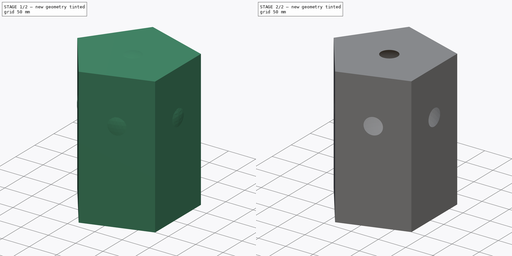
[diagram: build sequence overview — one tinted view per stage of 2, left to right]
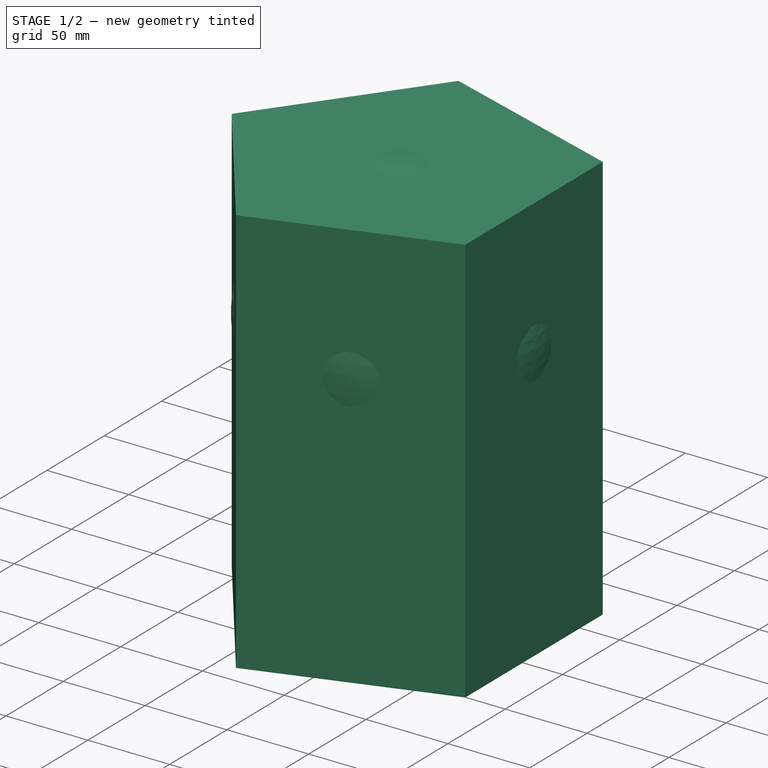
[diagram: stage 1 of 2 — iso view after this stage's code; geometry added in this stage tinted green]
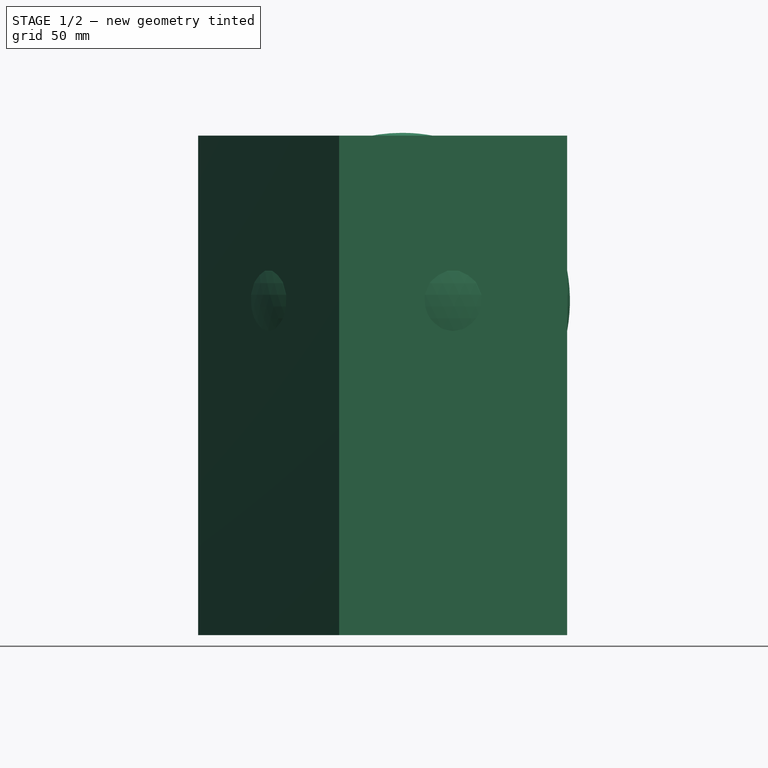
[diagram: stage 1 of 2 — front view after this stage's code; geometry added in this stage tinted green]
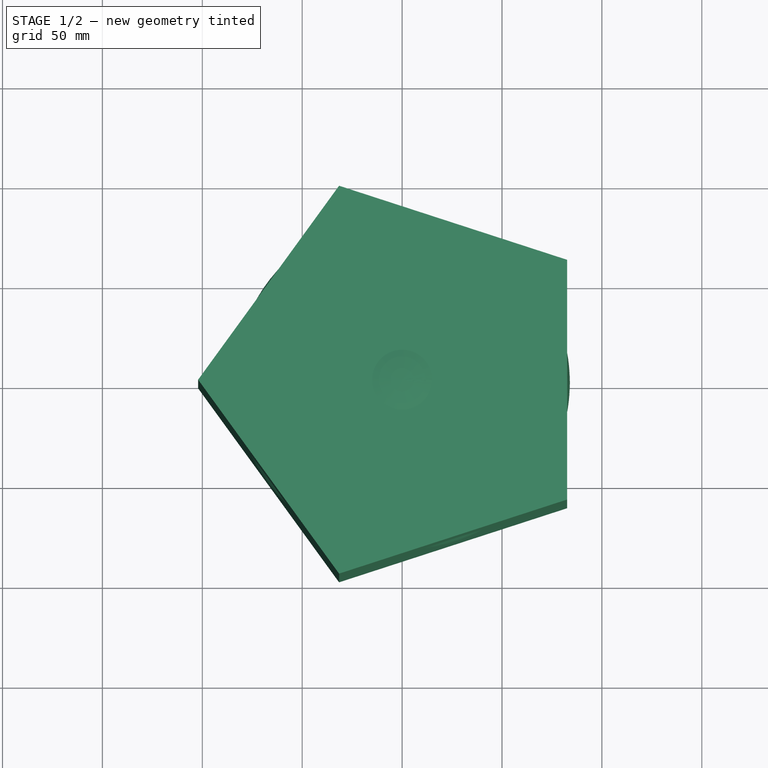
[diagram: stage 1 of 2 — top view after this stage's code; geometry added in this stage tinted green]
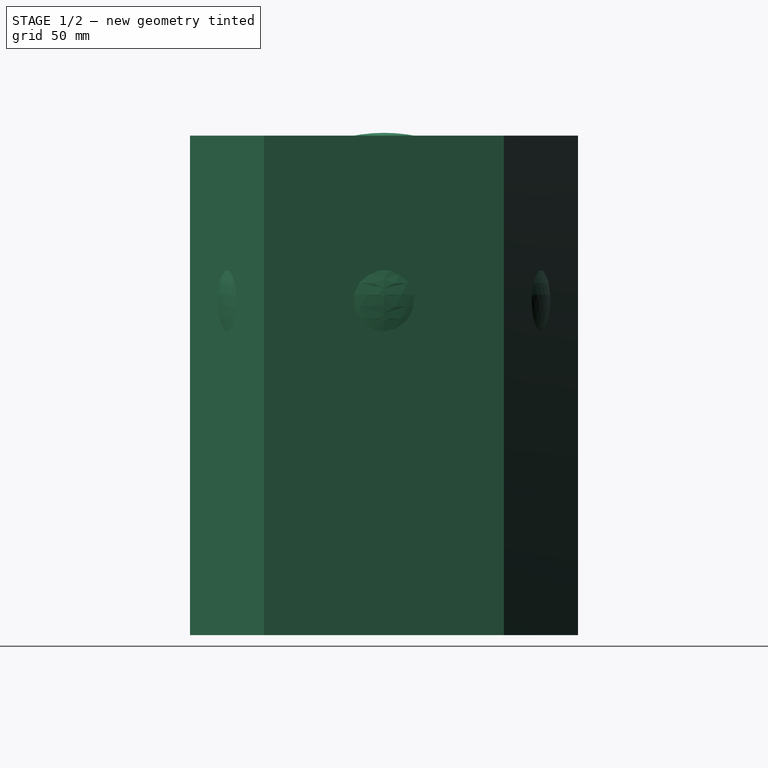
[diagram: stage 1 of 2 — right view after this stage's code; geometry added in this stage tinted green]
FCSTD DOCUMENT  (FreeCAD 0.15R4671 (Git))
Label: demoCotes
License: All rights reserved
LicenseURL: http://fr.wikipedia.org/wiki/<copyright redacted>
objects: Sketcher::SketchObject×4, PartDesign::Pad×1, PartDesign::Pocket×1, Part::Sphere×1, Part::Cut×1
note: 10 computed .brp shape members not serialized (recipe doc carries the construction recipe); baked Part::Feature solids carry a one-line shape summary decoded from their .brp

FEATURE [Sketcher::SketchObject] Sketch
  sketch-geometry (6):
    g0: LineSegment StartX=-31.5439 StartY=97.082 StartZ=0 EndX=-102.078 EndY=-1e-12 EndZ=0
    g1: LineSegment StartX=-102.078 StartY=-1e-12 StartZ=0 EndX=-31.5439 EndY=-97.082 EndZ=0
    g2: LineSegment StartX=-31.5439 StartY=-97.082 StartZ=0 EndX=82.5829 EndY=-60 EndZ=0
    g3: LineSegment StartX=82.5829 StartY=-60 StartZ=0 EndX=82.5829 EndY=60 EndZ=0
    g4: LineSegment StartX=82.5829 StartY=60 StartZ=0 EndX=-31.5439 EndY=97.082 EndZ=0
    g5: Circle [constr] CenterX=0 CenterY=0 CenterZ=0 NormalX=0 NormalY=0 NormalZ=1 Radius=102.078
  constraints (14):
    c: Coincident(g0,g1)
    c: Coincident(g1,g2)
    c: Coincident(g2,g3)
    c: Coincident(g3,g4)
    c: Coincident(g4,g0)
    c: Equal(g0, g1-g4) x4
    c: PointOnObject(g0,g5)
    c: PointOnObject(g1,g5)
    c: PointOnObject(g2,g5)
    c: PointOnObject(g3,g5)
    c: PointOnObject(g4,g5)
    c: Vertical(g3)
    c: Coincident(g5,g-1)
    c: Distance(g0) = 120
FEATURE [PartDesign::Pad] Pad
  Length = 250
  Length2 = 100
  Sketch = -> Sketch
  Type = 0
FEATURE [Part::Sphere] Sphere  label="Sphère"
  Angle1 = -90
  Angle2 = 90
  Angle3 = 360
  Placement = pos=(0,0,167.417) rot=(0,0,1;0rad)
  Radius = 83.9829
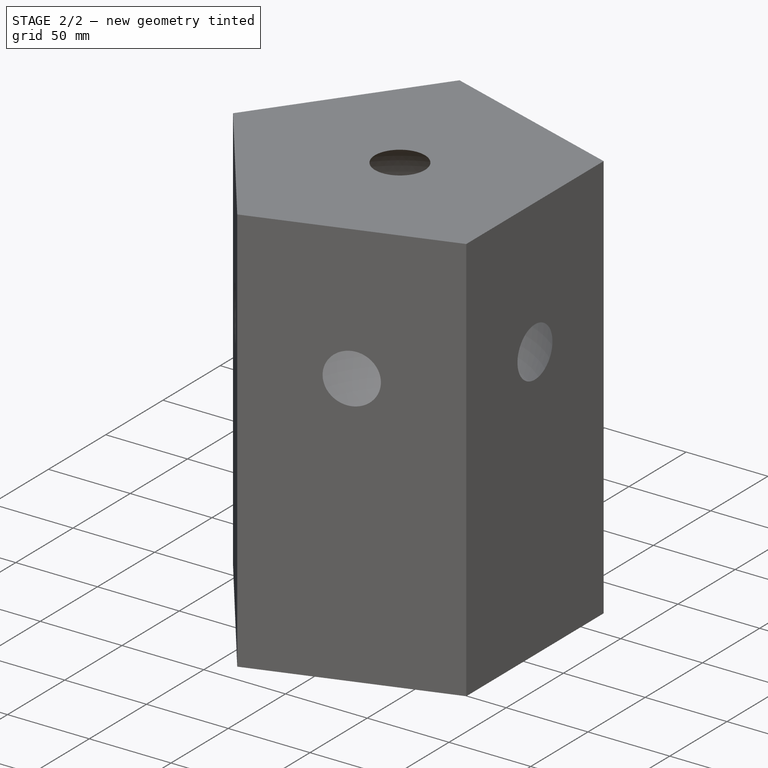
[diagram: stage 2 of 2 — iso view after this stage's code; geometry added in this stage tinted green]
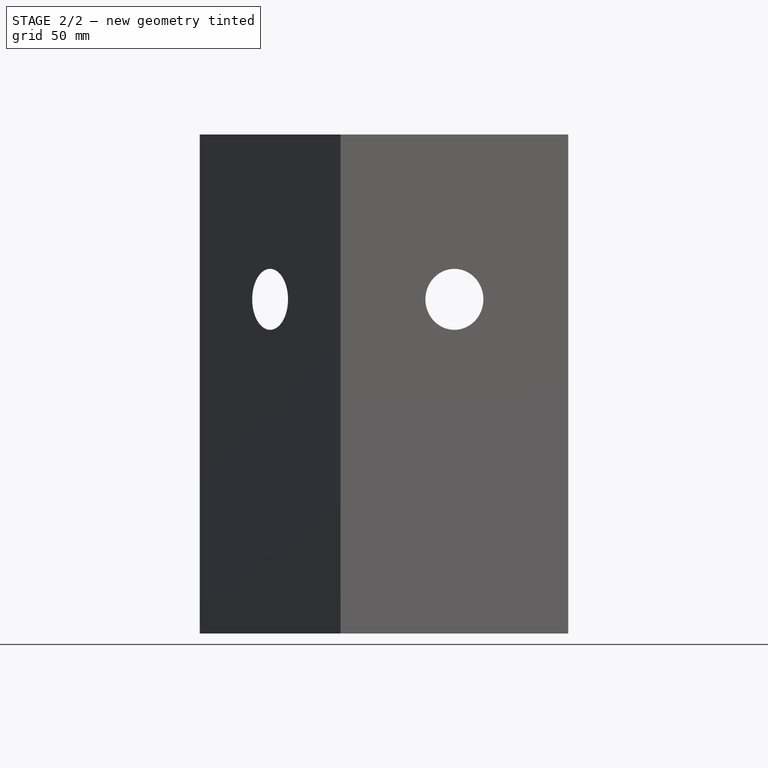
[diagram: stage 2 of 2 — front view after this stage's code; geometry added in this stage tinted green]
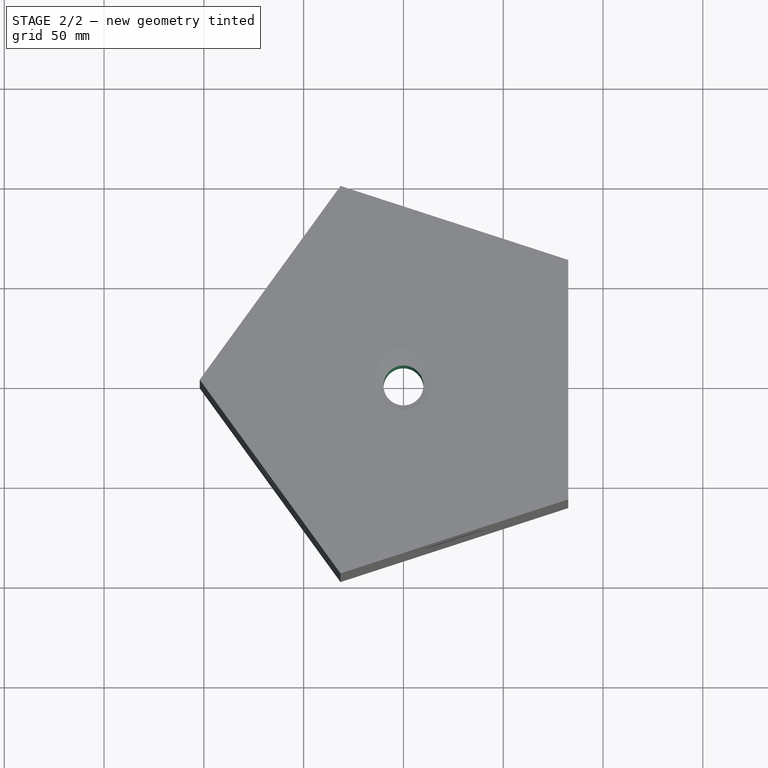
[diagram: stage 2 of 2 — top view after this stage's code; geometry added in this stage tinted green]
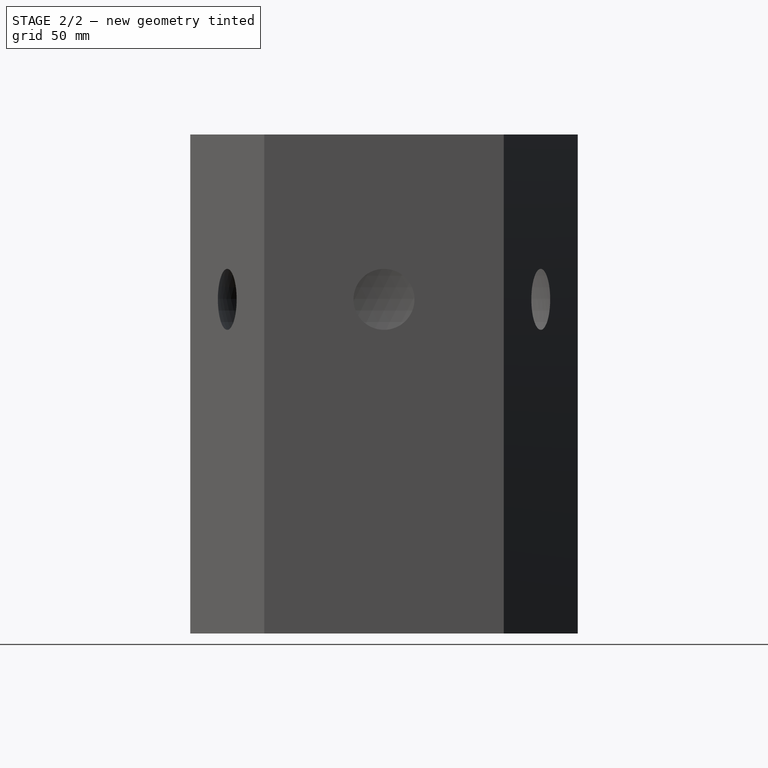
[diagram: stage 2 of 2 — right view after this stage's code; geometry added in this stage tinted green]
FEATURE [Sketcher::SketchObject] Sketch001
  ExternalGeometry = -> [Pad]
  Placement = pos=(0,0,250) rot=(0,0,1;0rad)
  Support = -> Pad [Face7]
  sketch-geometry (2):
    g0: Circle CenterX=0 CenterY=0 CenterZ=0 NormalX=0 NormalY=0 NormalZ=1 Radius=10
    g1: LineSegment [constr] StartX=-66.811 StartY=-48.541 StartZ=0 EndX=0 EndY=0 EndZ=0
  constraints (5):
    c: Coincident(g0,g-1)
    c: Radius(g0) = 10
    c: PointOnObject(g1,g-3)
    c: Coincident(g1,g-1)
    c: Perpendicular(g-3,g1)
FEATURE [PartDesign::Pocket] Pocket
  Length = 0
  Sketch = -> Sketch001
  Type = 1
FEATURE [Sketcher::SketchObject] Sketch002
  Placement = pos=(25.5195,-78.541,0) rot=(0.97582,0.154555,0.154555;1.59527rad)
  Support = -> Pocket [Face7]
FEATURE [Part::Cut] Cut
  Base = -> Pocket
  Tool = -> Sphere
FEATURE [Sketcher::SketchObject] Sketch003
  ExternalGeometry = -> [Cut]
  Placement = pos=(25.5195,-78.541,0) rot=(0.97582,0.154555,0.154555;1.59527rad)
  Support = -> Cut [Face8]
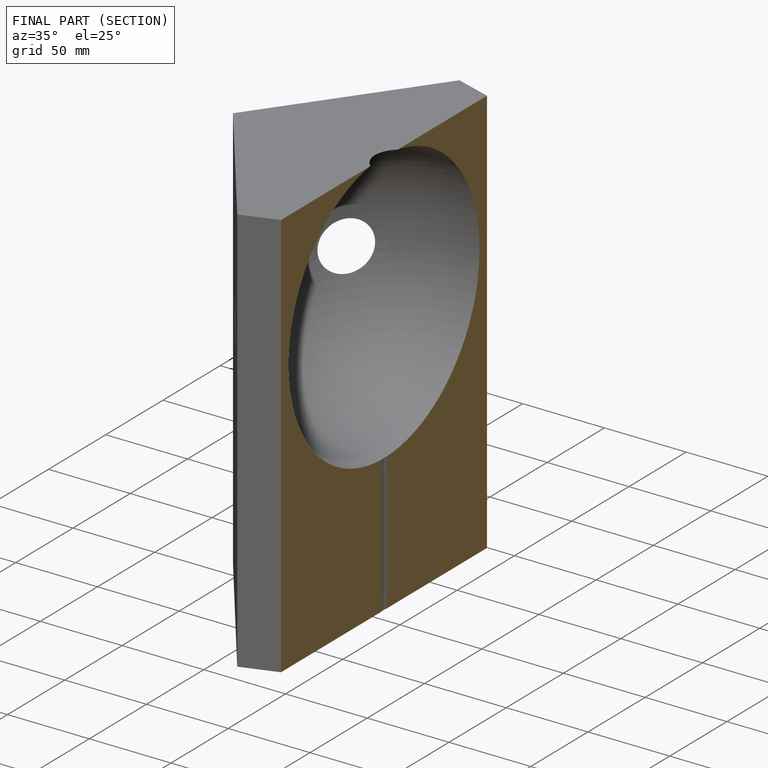
[diagram: finished part — half-section view (interior)]
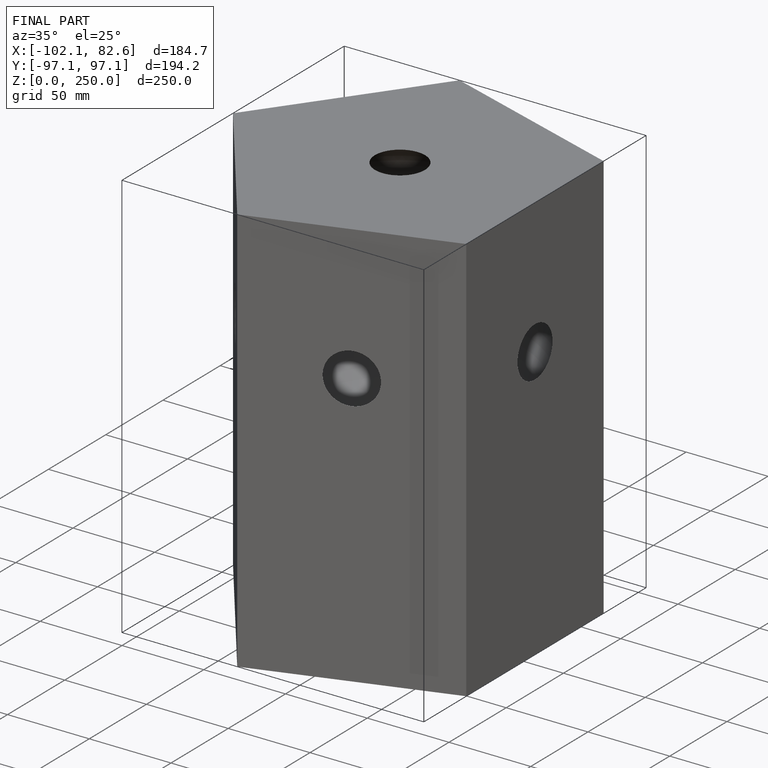
[diagram: finished part — iso view with bounding-box wireframe]
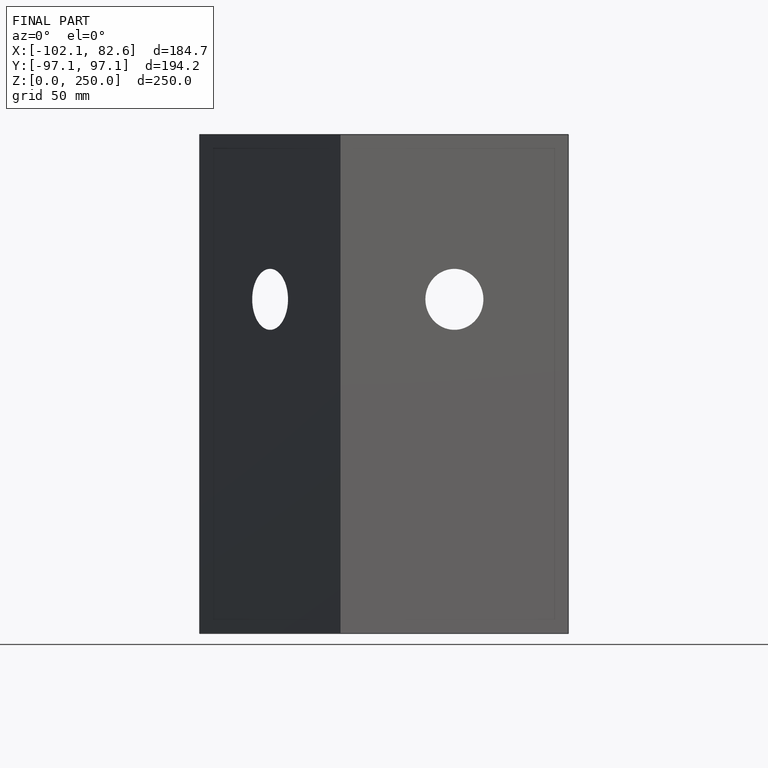
[diagram: finished part — front view with bounding-box wireframe]
